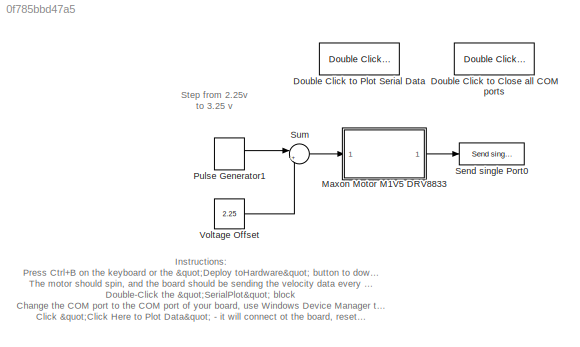
MODEL slx_0f785bbd47a5
KIND model
CONFIG AbsTol = auto
CONFIG FixedStep = auto
CONFIG MaxStep = auto
CONFIG MinStep = auto
CONFIG RelTol = 1e-3
CONFIG SampleTimeConstraint = Unconstrained
CONFIG Solver = ode45
CONFIG SolverMode = Auto
CONFIG SolverName = ode45
CONFIG StartTime = 0.0
CONFIG StopTime = 10.0
BLOCK [Reference] Double Click to Close all COM ports  REF=RASPlib/Double Click to
Close all COM ports
  Ports = []
  SourceBlock = RASPlib/Double Click to\nClose all COM ports
BLOCK [Reference] Double Click to Plot Serial Data  REF=RASPlib/Double Click to
Plot Serial Data
  BaudRate = 9600
  COMport = 6
  DataType = single
  NumSamples = 500
  Ports = []
  SourceBlock = RASPlib/Double Click to\nPlot Serial Data
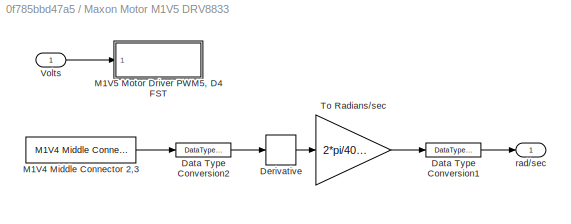
BLOCK [SubSystem] Maxon Motor M1V5 DRV8833
  Ports = [1, 1]
  RequestExecContextInheritance = off
BLOCK [DataTypeConversion] Maxon Motor M1V5 DRV8833/Data Type Conversion1
  OutDataTypeStr = single
  RndMeth = Floor
  SaturateOnIntegerOverflow = off
BLOCK [DataTypeConversion] Maxon Motor M1V5 DRV8833/Data Type Conversion2
  OutDataTypeStr = double
  RndMeth = Floor
  SaturateOnIntegerOverflow = off
BLOCK [Derivative] Maxon Motor M1V5 DRV8833/Derivative
BLOCK [Reference] Maxon Motor M1V5 DRV8833/M1V4 Middle Connector 2,3  REF=MinSegLibrary_M1V4/M1V4 Middle Connector 2,3
  Encoder = 0
  PWMFSelect = 3
  PWMTimer = -1
  PinA = 2
  PinB = 3
  Ports = [0, 1]
  SourceBlock = MinSegLibrary_M1V4/M1V4 Middle Connector 2,3
  SourceType = Encoder_arduino
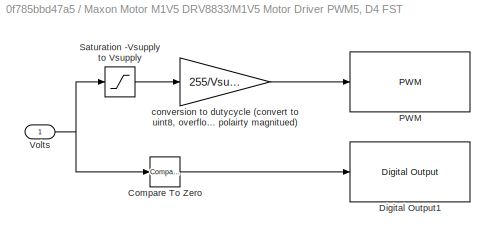
BLOCK [SubSystem] Maxon Motor M1V5 DRV8833/M1V5 Motor Driver PWM5, D4 FST
  AncestorBlock = MinSegLibrary_M1V4/M1V4  Middle Motor Driver\nPWM5, D4 FST
  Ports = [1]
  RequestExecContextInheritance = off
BLOCK [Reference] Maxon Motor M1V5 DRV8833/M1V5 Motor Driver PWM5, D4 FST/Compare To Zero  REF=simulink/Logic and Bit
Operations/Compare
To Zero
  OutDataTypeStr = boolean
  Ports = [1, 1]
  SourceBlock = simulink/Logic and Bit\nOperations/Compare\nTo Zero
  SourceType = Compare To Zero
  ZeroCross = on
  relop = <
BLOCK [Reference] Maxon Motor M1V5 DRV8833/M1V5 Motor Driver PWM5, D4 FST/Digital Output1  REF=arduinolib/Digital Output
  Ports = [1]
  SourceBlock = arduinolib/Digital Output
  SourceType = Arduino Digital Output
  blockPlatform = arduino
  pinNumber = 4
BLOCK [Reference] Maxon Motor M1V5 DRV8833/M1V5 Motor Driver PWM5, D4 FST/PWM  REF=arduinolib/PWM
  Ports = [1]
  SourceBlock = arduinolib/PWM
  SourceType = Arduino PWM
  blockPlatform = arduino
  pinNumber = 5
BLOCK [Saturate] Maxon Motor M1V5 DRV8833/M1V5 Motor Driver PWM5, D4 FST/Saturation -Vsupply to Vsupply
  InputPortMap = u0
  LowerLimit = -Vsupply
  OutDataTypeStr = single
  Ports = [1, 1]
  UpperLimit = Vsupply
BLOCK [Inport] Maxon Motor M1V5 DRV8833/M1V5 Motor Driver PWM5, D4 FST/Volts
  IconDisplay = Port number
BLOCK [Gain] Maxon Motor M1V5 DRV8833/M1V5 Motor Driver PWM5, D4 FST/conversion to dutycycle (convert to uint8, overflow will provide reverse polairty magnitued)
  Gain = 255/Vsupply
  OutDataTypeStr = uint8
  ParamDataTypeStr = Inherit: Inherit via internal rule
  SaturateOnIntegerOverflow = off
BLOCK [Gain] Maxon Motor M1V5 DRV8833/To Radians//sec
  Gain = 2*pi/4096
  OutDataTypeStr = Inherit: Inherit via internal rule
  ParamDataTypeStr = Inherit: Inherit via internal rule
  SaturateOnIntegerOverflow = off
BLOCK [Inport] Maxon Motor M1V5 DRV8833/Volts
  IconDisplay = Port number
BLOCK [Outport] Maxon Motor M1V5 DRV8833/rad//sec
  IconDisplay = Port number
BLOCK [DiscretePulseGenerator] Pulse Generator1
  Period = 8
  Ports = [0, 1]
  PulseType = Time based
  PulseWidth = 50
BLOCK [Reference] Send single Port0  REF=RASPlib/Send single Port0
  Ports = [1]
  SourceBlock = RASPlib/Send single Port0
  SourceType = SubSystem
BLOCK [Sum] Sum
  IconShape = round
  InputSameDT = off
  Inputs = |++
  OutDataTypeStr = Inherit: Inherit via internal rule
  Ports = [2, 1]
  SaturateOnIntegerOverflow = off
BLOCK [Constant] Voltage Offset
  Value = 2.25
ANNOTATION (root): Instructions : Press Ctrl+B on the keyboard or the "Deploy toHardware" button to download the code The motor should spin, and the board should be sending the velocity data every 5 milliseconds Double-Click the "SerialPlot" block Change the COM port to the COM port of your board, use Windows Device Manager to find the COM port Click "Click Here to Plot Data" - it will connect ot the board, reset it...<+587ch>
ANNOTATION (root): Step from 2.25v to 3.25 v
LINE Maxon Motor M1V5 DRV8833/Data Type Conversion1:1 -> Maxon Motor M1V5 DRV8833/rad//sec:1
LINE Maxon Motor M1V5 DRV8833/Data Type Conversion2:1 -> Maxon Motor M1V5 DRV8833/Derivative:1
LINE Maxon Motor M1V5 DRV8833/Derivative:1 -> Maxon Motor M1V5 DRV8833/To Radians//sec:1
LINE Maxon Motor M1V5 DRV8833/M1V4 Middle Connector 2,3:1 -> Maxon Motor M1V5 DRV8833/Data Type Conversion2:1
LINE Maxon Motor M1V5 DRV8833/To Radians//sec:1 -> Maxon Motor M1V5 DRV8833/Data Type Conversion1:1
LINE Maxon Motor M1V5 DRV8833/Volts:1 -> Maxon Motor M1V5 DRV8833/M1V5 Motor Driver PWM5, D4 FST:1
LINE Maxon Motor M1V5 DRV8833:1 -> Send single Port0:1
LINE Pulse Generator1:1 -> Sum:1
LINE Sum:1 -> Maxon Motor M1V5 DRV8833:1
LINE Voltage Offset:1 -> Sum:2
